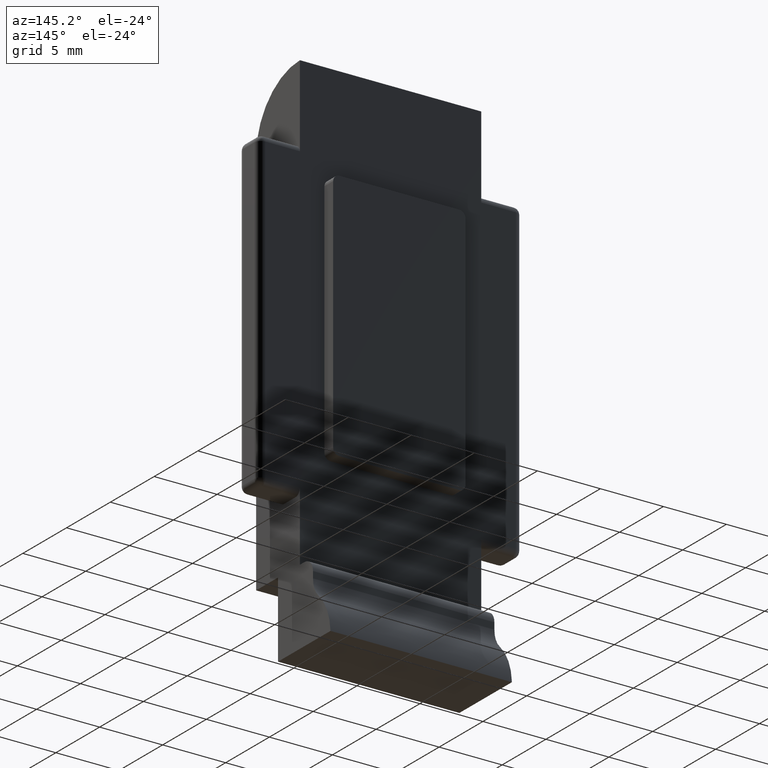
[diagram: clean part render]
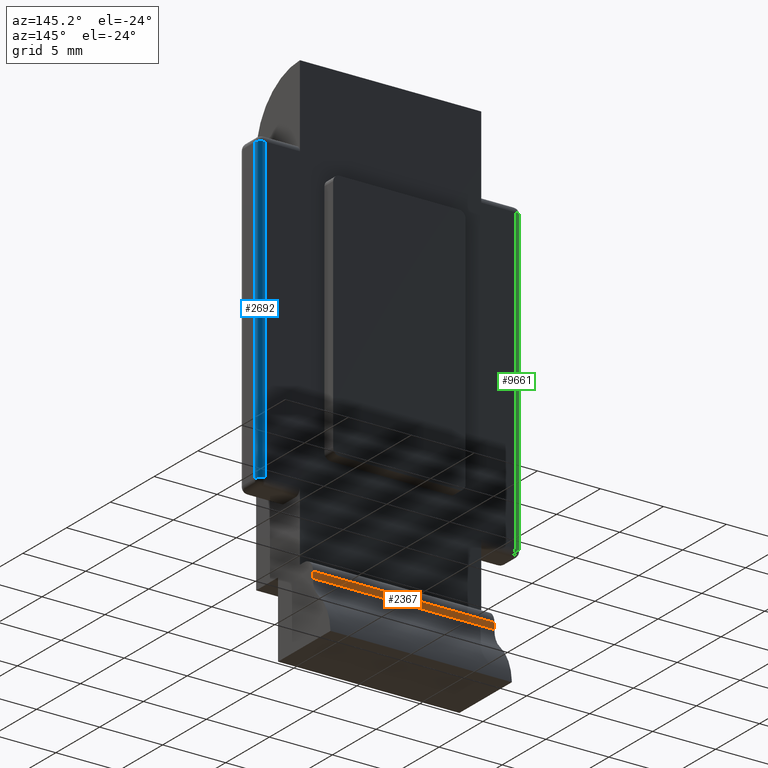
[diagram: same view with three faces highlighted in distinct colors, each labeled with its STEP entity id]
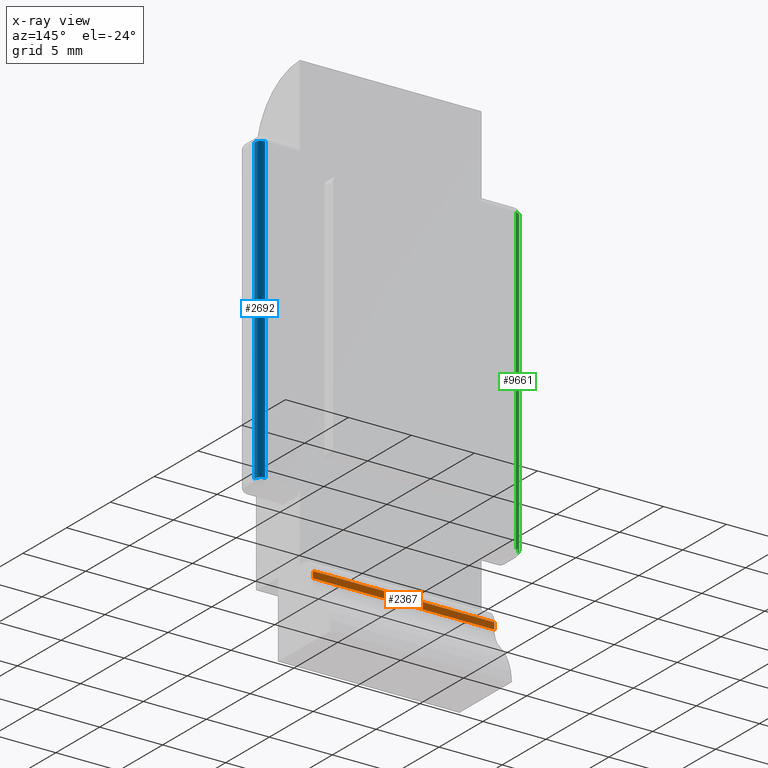
[diagram: x-ray of the same camera — body ghosted, the three highlighted faces saturated]
A machine part, auxiliary view with three faces highlighted in distinct colors.
The next image is the same camera in x-ray (body ghosted, the three faces saturated) — at least one of them is partly hidden behind the body in this view.
Their STEP definitions:

[orange] entity #2367 — the highlighted planar face has unit normal (0, 1, 0).
#90 = VERTEX_POINT ( 'NONE', #480 ) ;
#480 = CARTESIAN_POINT ( 'NONE',  ( 14.40000000000000000, 1.499999999999995300, -1.000000000000000900 ) ) ;
#965 = AXIS2_PLACEMENT_3D ( 'NONE', #5917, #5097, #3630 ) ;
#1069 = VECTOR ( 'NONE', #4780, 1000.000000000000000 ) ;
#1165 = ORIENTED_EDGE ( 'NONE', *, *, #5620, .T. ) ;
#1536 = ORIENTED_EDGE ( 'NONE', *, *, #9893, .T. ) ;
#1733 = CARTESIAN_POINT ( 'NONE',  ( 14.40000000000000000, 1.499999999999995300, -1.519743943650807300 ) ) ;
#1978 = VECTOR ( 'NONE', #6596, 1000.000000000000000 ) ;
#2001 = LINE ( 'NONE', #3443, #2115 ) ;
#2093 = CARTESIAN_POINT ( 'NONE',  ( 0.0000000000000000000, 1.499999999999995300, -1.519743943650807300 ) ) ;
#2115 = VECTOR ( 'NONE', #2590, 1000.000000000000000 ) ;
#2367 = ADVANCED_FACE ( 'NONE', ( #8510 ), #9795, .T. ) ;
#2406 = VERTEX_POINT ( 'NONE', #9080 ) ;
#2496 = EDGE_LOOP ( 'NONE', ( #1165, #9029, #4348, #1536 ) ) ;
#2590 = DIRECTION ( 'NONE',  ( 0.0000000000000000000, 0.0000000000000000000, 1.000000000000000000 ) ) ;
#3443 = CARTESIAN_POINT ( 'NONE',  ( 0.0000000000000000000, 1.499999999999995300, -2.469999999999999800 ) ) ;
#3507 = CARTESIAN_POINT ( 'NONE',  ( 0.0000000000000000000, 1.499999999999995300, -1.000000000000000900 ) ) ;
#3630 = DIRECTION ( 'NONE',  ( 0.0000000000000000000, -0.0000000000000000000, 1.000000000000000000 ) ) ;
#4021 = VECTOR ( 'NONE', #5881, 1000.000000000000000 ) ;
#4330 = EDGE_CURVE ( 'NONE', #7040, #90, #6103, .T. ) ;
#4348 = ORIENTED_EDGE ( 'NONE', *, *, #7993, .F. ) ;
#4780 = DIRECTION ( 'NONE',  ( 1.000000000000000000, -0.0000000000000000000, 0.0000000000000000000 ) ) ;
#4992 = LINE ( 'NONE', #8858, #1978 ) ;
#5097 = DIRECTION ( 'NONE',  ( 0.0000000000000000000, 1.000000000000000000, 0.0000000000000000000 ) ) ;
#5620 = EDGE_CURVE ( 'NONE', #2406, #7040, #2001, .T. ) ;
#5881 = DIRECTION ( 'NONE',  ( -1.000000000000000000, -0.0000000000000000000, -0.0000000000000000000 ) ) ;
#5917 = CARTESIAN_POINT ( 'NONE',  ( 0.0000000000000000000, 1.499999999999995300, -2.469999999999999800 ) ) ;
#6103 = LINE ( 'NONE', #7797, #1069 ) ;
#6596 = DIRECTION ( 'NONE',  ( 0.0000000000000000000, 0.0000000000000000000, 1.000000000000000000 ) ) ;
#7040 = VERTEX_POINT ( 'NONE', #3507 ) ;
#7797 = CARTESIAN_POINT ( 'NONE',  ( 0.0000000000000000000, 1.499999999999995300, -1.000000000000000900 ) ) ;
#7925 = LINE ( 'NONE', #2093, #4021 ) ;
#7993 = EDGE_CURVE ( 'NONE', #8866, #90, #4992, .T. ) ;
#8510 = FACE_OUTER_BOUND ( 'NONE', #2496, .T. ) ;
#8858 = CARTESIAN_POINT ( 'NONE',  ( 14.40000000000000000, 1.499999999999995300, -2.469999999999999800 ) ) ;
#8866 = VERTEX_POINT ( 'NONE', #1733 ) ;
#9029 = ORIENTED_EDGE ( 'NONE', *, *, #4330, .T. ) ;
#9080 = CARTESIAN_POINT ( 'NONE',  ( 0.0000000000000000000, 1.499999999999995300, -1.519743943650807300 ) ) ;
#9795 = PLANE ( 'NONE',  #965 ) ;
#9893 = EDGE_CURVE ( 'NONE', #8866, #2406, #7925, .T. ) ;

[blue] entity #2692 — the highlighted cylindrical surface (edge-blend (fillet) strip) has radius 0.5 mm, axis along (0, -0, 1).
#257 = CARTESIAN_POINT ( 'NONE',  ( 17.14999999999999900, -6.505213034913026600E-016, 5.499999999999998200 ) ) ;
#286 = LINE ( 'NONE', #6440, #6040 ) ;
#589 = AXIS2_PLACEMENT_3D ( 'NONE', #7656, #747, #1510 ) ;
#747 = DIRECTION ( 'NONE',  ( 0.0000000000000000000, -1.224646799147353000E-016, 1.000000000000000000 ) ) ;
#926 = EDGE_LOOP ( 'NONE', ( #3273, #3729, #2836, #3747 ) ) ;
#1092 = VECTOR ( 'NONE', #4594, 1000.000000000000000 ) ;
#1127 = AXIS2_PLACEMENT_3D ( 'NONE', #4572, #3745, #8335 ) ;
#1510 = DIRECTION ( 'NONE',  ( 0.0000000000000000000, -1.000000000000000000, -1.224646799147353000E-016 ) ) ;
#2692 = ADVANCED_FACE ( 'NONE', ( #6128 ), #9838, .T. ) ;
#2836 = ORIENTED_EDGE ( 'NONE', *, *, #7156, .F. ) ;
#3208 = CIRCLE ( 'NONE', #1127, 0.5000000000000004400 ) ;
#3273 = ORIENTED_EDGE ( 'NONE', *, *, #6444, .T. ) ;
#3387 = EDGE_CURVE ( 'NONE', #7778, #5301, #3490, .T. ) ;
#3490 = LINE ( 'NONE', #8391, #1092 ) ;
#3602 = VERTEX_POINT ( 'NONE', #257 ) ;
#3607 = DIRECTION ( 'NONE',  ( -0.0000000000000000000, 1.224646799147353000E-016, -1.000000000000000000 ) ) ;
#3626 = DIRECTION ( 'NONE',  ( -0.0000000000000000000, -0.0000000000000000000, -1.000000000000000000 ) ) ;
#3729 = ORIENTED_EDGE ( 'NONE', *, *, #3387, .F. ) ;
#3745 = DIRECTION ( 'NONE',  ( -1.734723475976805300E-015, 0.0000000000000000000, -1.000000000000000000 ) ) ;
#3747 = ORIENTED_EDGE ( 'NONE', *, *, #8322, .F. ) ;
#3853 = CARTESIAN_POINT ( 'NONE',  ( 17.64999999999999900, -0.5000000000000035500, 29.50000000000000000 ) ) ;
#4572 = CARTESIAN_POINT ( 'NONE',  ( 17.14999999999999900, -0.5000000000000006700, 5.499999999999998200 ) ) ;
#4594 = DIRECTION ( 'NONE',  ( 0.0000000000000000000, -1.224646799147353000E-016, 1.000000000000000000 ) ) ;
#5301 = VERTEX_POINT ( 'NONE', #3853 ) ;
#6040 = VECTOR ( 'NONE', #3607, 1000.000000000000000 ) ;
#6105 = CARTESIAN_POINT ( 'NONE',  ( 17.14999999999999900, -3.686287386450715100E-015, 29.50000000000000000 ) ) ;
#6128 = FACE_OUTER_BOUND ( 'NONE', #926, .T. ) ;
#6440 = CARTESIAN_POINT ( 'NONE',  ( 17.14999999999999900, -4.336808689942017700E-015, 36.00000000000000000 ) ) ;
#6444 = EDGE_CURVE ( 'NONE', #7195, #5301, #7370, .T. ) ;
#7156 = EDGE_CURVE ( 'NONE', #3602, #7778, #3208, .T. ) ;
#7195 = VERTEX_POINT ( 'NONE', #6105 ) ;
#7370 = CIRCLE ( 'NONE', #8009, 0.5000000000000004400 ) ;
#7437 = DIRECTION ( 'NONE',  ( 1.000000000000000000, 0.0000000000000000000, 0.0000000000000000000 ) ) ;
#7600 = CARTESIAN_POINT ( 'NONE',  ( 17.14999999999999900, -0.5000000000000035500, 29.50000000000000000 ) ) ;
#7656 = CARTESIAN_POINT ( 'NONE',  ( 17.14999999999999900, -0.5000000000000000000, 0.0000000000000000000 ) ) ;
#7778 = VERTEX_POINT ( 'NONE', #9257 ) ;
#8009 = AXIS2_PLACEMENT_3D ( 'NONE', #7600, #3626, #7437 ) ;
#8322 = EDGE_CURVE ( 'NONE', #7195, #3602, #286, .T. ) ;
#8335 = DIRECTION ( 'NONE',  ( -1.000000000000000000, 0.0000000000000000000, 1.734723475976805500E-015 ) ) ;
#8391 = CARTESIAN_POINT ( 'NONE',  ( 17.64999999999999900, -0.5000000000000000000, 0.0000000000000000000 ) ) ;
#9257 = CARTESIAN_POINT ( 'NONE',  ( 17.64999999999999900, -0.5000000000000006700, 5.499999999999998200 ) ) ;
#9838 = CYLINDRICAL_SURFACE ( 'NONE', #589, 0.5000000000000000000 ) ;

[green] entity #9661 — the highlighted cylindrical surface (edge-blend (fillet) strip) has radius 0.5 mm, axis along (0, -0, 1).
#16 = VECTOR ( 'NONE', #9441, 1000.000000000000000 ) ;
#40 = FACE_OUTER_BOUND ( 'NONE', #3780, .T. ) ;
#354 = EDGE_CURVE ( 'NONE', #1248, #3906, #3394, .T. ) ;
#865 = DIRECTION ( 'NONE',  ( 0.0000000000000000000, -1.000000000000000000, -1.224646799147353000E-016 ) ) ;
#942 = CARTESIAN_POINT ( 'NONE',  ( -3.249999999999999600, -0.5000000000000006700, 4.999999999999997300 ) ) ;
#964 = CARTESIAN_POINT ( 'NONE',  ( -3.249999999999999600, -0.5000000000000007800, 5.499999999999998200 ) ) ;
#1057 = ORIENTED_EDGE ( 'NONE', *, *, #6034, .F. ) ;
#1248 = VERTEX_POINT ( 'NONE', #4716 ) ;
#1283 = DIRECTION ( 'NONE',  ( 1.000000000000000000, 0.0000000000000000000, 0.0000000000000000000 ) ) ;
#1285 = ORIENTED_EDGE ( 'NONE', *, *, #7446, .T. ) ;
#1707 = CARTESIAN_POINT ( 'NONE',  ( -2.750000000000000900, -3.686287386450715100E-015, 30.00000000000000000 ) ) ;
#2168 = ORIENTED_EDGE ( 'NONE', *, *, #8747, .F. ) ;
#2326 = CIRCLE ( 'NONE', #2589, 0.5000000000000000000 ) ;
#2397 = DIRECTION ( 'NONE',  ( -1.000000000000000000, 0.0000000000000000000, 0.0000000000000000000 ) ) ;
#2474 = VERTEX_POINT ( 'NONE', #6818 ) ;
#2589 = AXIS2_PLACEMENT_3D ( 'NONE', #7878, #7006, #2397 ) ;
#3053 = DIRECTION ( 'NONE',  ( 0.0000000000000000000, -1.224646799147353000E-016, 1.000000000000000000 ) ) ;
#3394 = LINE ( 'NONE', #942, #16 ) ;
#3532 = CARTESIAN_POINT ( 'NONE',  ( -2.750000000000000900, -0.5000000000000035500, 29.50000000000000000 ) ) ;
#3574 = CIRCLE ( 'NONE', #6240, 0.5000000000000000000 ) ;
#3700 = LINE ( 'NONE', #1707, #5126 ) ;
#3780 = EDGE_LOOP ( 'NONE', ( #1285, #1057, #2168, #6932 ) ) ;
#3906 = VERTEX_POINT ( 'NONE', #964 ) ;
#3926 = CARTESIAN_POINT ( 'NONE',  ( -2.750000000000000900, -0.5000000000000000000, 0.0000000000000000000 ) ) ;
#4103 = DIRECTION ( 'NONE',  ( -0.0000000000000000000, -1.224646799147353000E-016, 1.000000000000000000 ) ) ;
#4334 = DIRECTION ( 'NONE',  ( -0.0000000000000000000, 0.0000000000000000000, -1.000000000000000000 ) ) ;
#4716 = CARTESIAN_POINT ( 'NONE',  ( -3.249999999999999600, -0.5000000000000036600, 29.50000000000000000 ) ) ;
#5126 = VECTOR ( 'NONE', #4103, 1000.000000000000000 ) ;
#5922 = CYLINDRICAL_SURFACE ( 'NONE', #8684, 0.5000000000000000000 ) ;
#6034 = EDGE_CURVE ( 'NONE', #2474, #7296, #3700, .T. ) ;
#6240 = AXIS2_PLACEMENT_3D ( 'NONE', #3532, #4334, #1283 ) ;
#6818 = CARTESIAN_POINT ( 'NONE',  ( -2.750000000000000900, -6.505213034913026600E-016, 5.499999999999998200 ) ) ;
#6932 = ORIENTED_EDGE ( 'NONE', *, *, #354, .F. ) ;
#7006 = DIRECTION ( 'NONE',  ( 0.0000000000000000000, 0.0000000000000000000, -1.000000000000000000 ) ) ;
#7296 = VERTEX_POINT ( 'NONE', #9504 ) ;
#7446 = EDGE_CURVE ( 'NONE', #1248, #7296, #3574, .T. ) ;
#7878 = CARTESIAN_POINT ( 'NONE',  ( -2.750000000000000900, -0.5000000000000007800, 5.499999999999998200 ) ) ;
#8684 = AXIS2_PLACEMENT_3D ( 'NONE', #3926, #3053, #865 ) ;
#8747 = EDGE_CURVE ( 'NONE', #3906, #2474, #2326, .T. ) ;
#9441 = DIRECTION ( 'NONE',  ( 0.0000000000000000000, 1.224646799147353000E-016, -1.000000000000000000 ) ) ;
#9504 = CARTESIAN_POINT ( 'NONE',  ( -2.750000000000000900, -3.686287386450715100E-015, 29.50000000000000000 ) ) ;
#9661 = ADVANCED_FACE ( 'NONE', ( #40 ), #5922, .T. ) ;